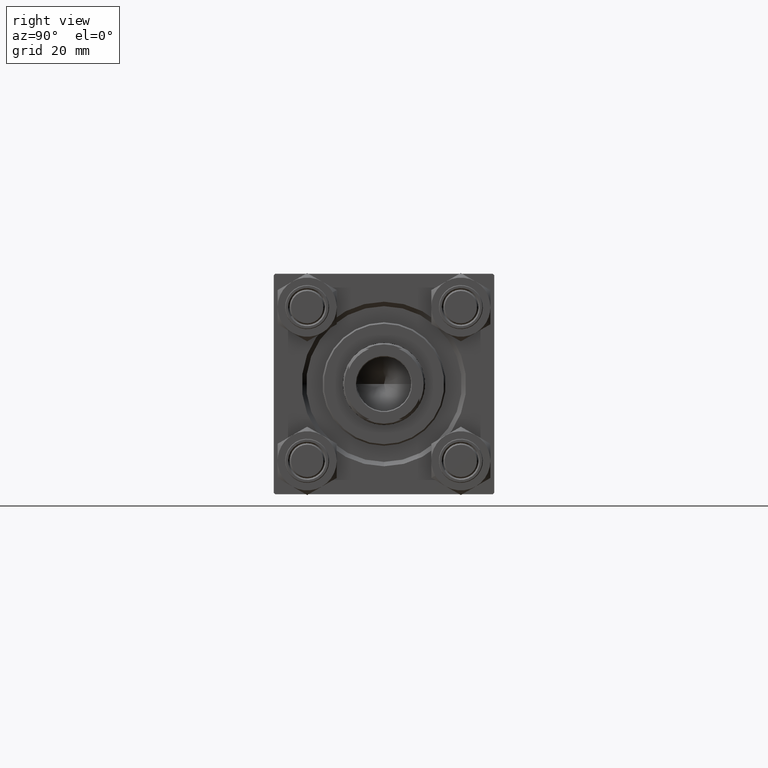
[diagram: clean part render]
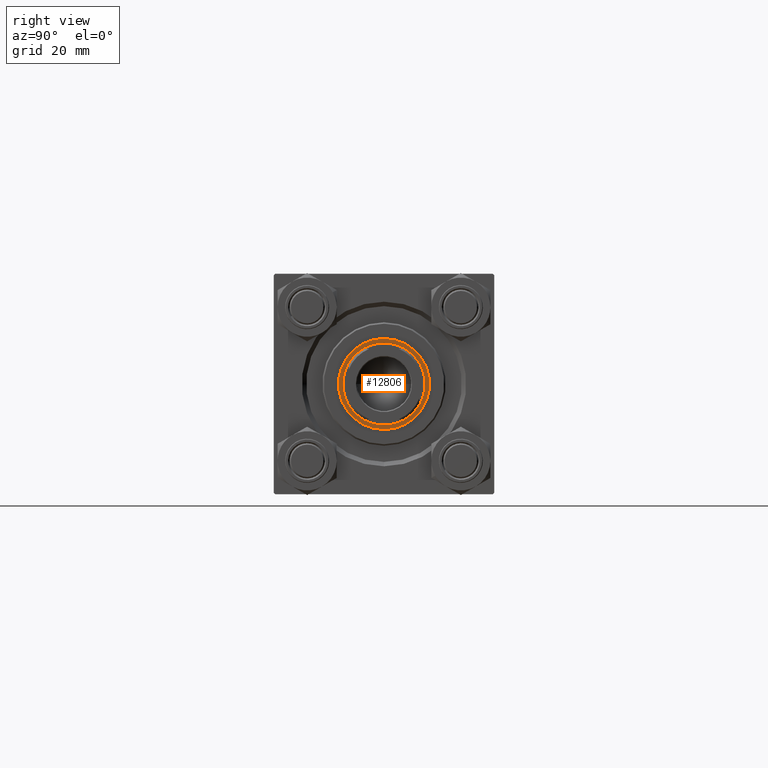
[diagram: same view with one face highlighted and labeled with its STEP entity id]
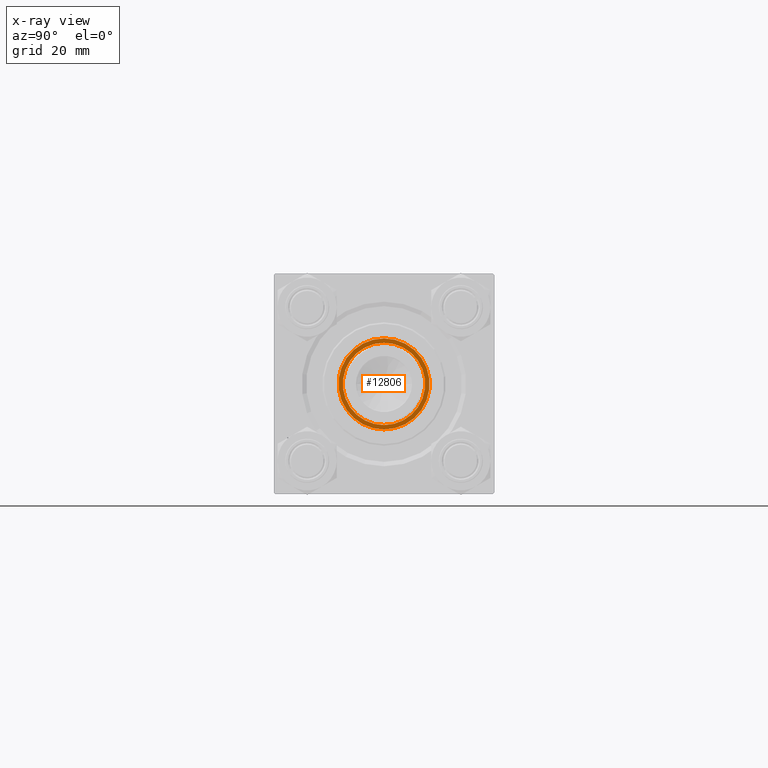
[diagram: x-ray of the same camera — body ghosted, the highlighted face saturated]
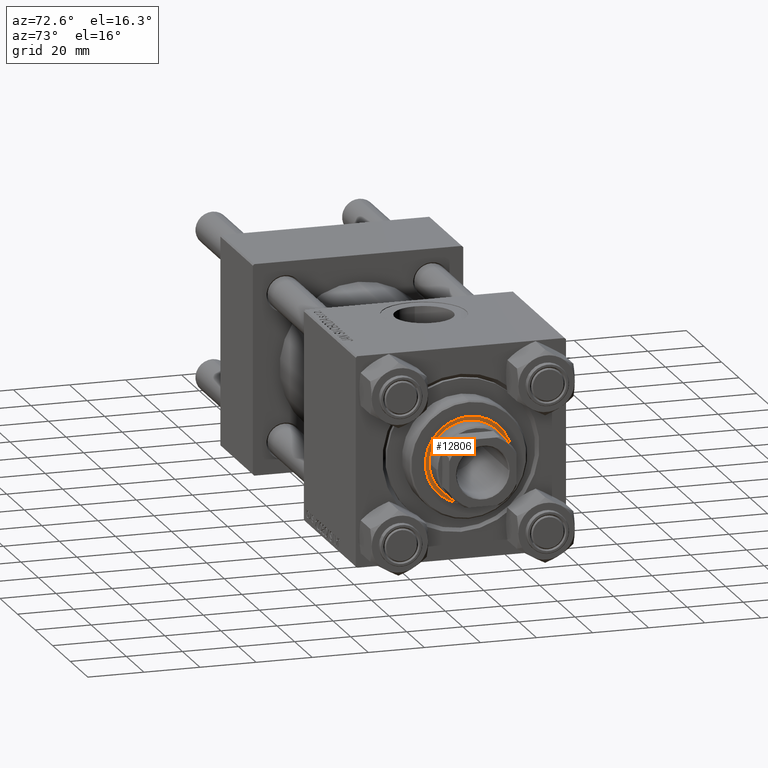
[diagram: same view with one face highlighted and labeled with its STEP entity id]
A machine part, right view. The second image highlights one B-rep face of the part: STEP entity #12806.
The next image is the same camera in x-ray: the body ghosted, the highlighted face saturated — about 0% of this face is hidden behind the body in this view.
A second angle (auxiliary view) of the same face is appended — the face is thin or edge-on in the first view.
In plain terms, the highlighted planar face has unit normal (1, 0, -0).
Its self-contained STEP definition (entity closure, byte-faithful):
#60 = DIRECTION ( 'NONE',  ( 1.000000000000000000, 0.000000000000000000, 0.000000000000000000 ) ) ;
#2221 = EDGE_LOOP ( 'NONE', ( #20067, #11394 ) ) ;
#3094 = CARTESIAN_POINT ( 'NONE',  ( 0.000000000000000000, 0.000000000000000000, 37.19999999999999574 ) ) ;
#4165 = EDGE_CURVE ( 'NONE', #33760, #31692, #21503, .T. ) ;
#6083 = ORIENTED_EDGE ( 'NONE', *, *, #29401, .T. ) ;
#8301 = CIRCLE ( 'NONE', #29206, 15.50000000000000000 ) ;
#8487 = CARTESIAN_POINT ( 'NONE',  ( -15.50000000000000000, 1.898202538678397557E-15, 37.19999999999999574 ) ) ;
#10490 = CARTESIAN_POINT ( 'NONE',  ( -14.00000000000000178, 1.714505518806294835E-15, 37.19999999999999574 ) ) ;
#11394 = ORIENTED_EDGE ( 'NONE', *, *, #24919, .T. ) ;
#12252 = DIRECTION ( 'NONE',  ( 0.000000000000000000, 0.000000000000000000, 1.000000000000000000 ) ) ;
#12717 = VERTEX_POINT ( 'NONE', #32453 ) ;
#12806 = ADVANCED_FACE ( 'NONE', ( #22126, #18097 ), #49034, .T. ) ;
#13280 = CIRCLE ( 'NONE', #22123, 14.00000000000000178 ) ;
#13666 = AXIS2_PLACEMENT_3D ( 'NONE', #29925, #14326, #45265 ) ;
#14181 = CARTESIAN_POINT ( 'NONE',  ( 0.000000000000000000, 0.000000000000000000, 37.19999999999999574 ) ) ;
#14326 = DIRECTION ( 'NONE',  ( 0.000000000000000000, 0.000000000000000000, 1.000000000000000000 ) ) ;
#16160 = DIRECTION ( 'NONE',  ( -0.000000000000000000, -0.000000000000000000, -1.000000000000000000 ) ) ;
#16355 = CARTESIAN_POINT ( 'NONE',  ( 14.00000000000000178, 0.000000000000000000, 37.19999999999999574 ) ) ;
#18097 = FACE_BOUND ( 'NONE', #31561, .T. ) ;
#18438 = DIRECTION ( 'NONE',  ( -0.000000000000000000, -0.000000000000000000, -1.000000000000000000 ) ) ;
#20067 = ORIENTED_EDGE ( 'NONE', *, *, #47285, .T. ) ;
#20939 = DIRECTION ( 'NONE',  ( 0.000000000000000000, 0.000000000000000000, 1.000000000000000000 ) ) ;
#21503 = CIRCLE ( 'NONE', #32749, 14.00000000000000178 ) ;
#22123 = AXIS2_PLACEMENT_3D ( 'NONE', #14181, #16160, #60 ) ;
#22126 = FACE_OUTER_BOUND ( 'NONE', #2221, .T. ) ;
#24919 = EDGE_CURVE ( 'NONE', #28926, #12717, #46079, .T. ) ;
#28926 = VERTEX_POINT ( 'NONE', #8487 ) ;
#29206 = AXIS2_PLACEMENT_3D ( 'NONE', #36791, #20939, #40319 ) ;
#29401 = EDGE_CURVE ( 'NONE', #31692, #33760, #13280, .T. ) ;
#29925 = CARTESIAN_POINT ( 'NONE',  ( 0.000000000000000000, 0.000000000000000000, 37.19999999999999574 ) ) ;
#30625 = DIRECTION ( 'NONE',  ( 1.000000000000000000, 0.000000000000000000, 0.000000000000000000 ) ) ;
#31561 = EDGE_LOOP ( 'NONE', ( #46919, #6083 ) ) ;
#31692 = VERTEX_POINT ( 'NONE', #10490 ) ;
#32453 = CARTESIAN_POINT ( 'NONE',  ( 15.50000000000000000, 0.000000000000000000, 37.19999999999999574 ) ) ;
#32749 = AXIS2_PLACEMENT_3D ( 'NONE', #3094, #18438, #44850 ) ;
#33760 = VERTEX_POINT ( 'NONE', #16355 ) ;
#34897 = CARTESIAN_POINT ( 'NONE',  ( 0.000000000000000000, 0.000000000000000000, 37.19999999999999574 ) ) ;
#36791 = CARTESIAN_POINT ( 'NONE',  ( 0.000000000000000000, 0.000000000000000000, 37.19999999999999574 ) ) ;
#40319 = DIRECTION ( 'NONE',  ( 1.000000000000000000, 0.000000000000000000, 0.000000000000000000 ) ) ;
#42065 = AXIS2_PLACEMENT_3D ( 'NONE', #34897, #12252, #30625 ) ;
#44850 = DIRECTION ( 'NONE',  ( 1.000000000000000000, 0.000000000000000000, 0.000000000000000000 ) ) ;
#45265 = DIRECTION ( 'NONE',  ( 1.000000000000000000, 0.000000000000000000, -0.000000000000000000 ) ) ;
#46079 = CIRCLE ( 'NONE', #42065, 15.50000000000000000 ) ;
#46919 = ORIENTED_EDGE ( 'NONE', *, *, #4165, .T. ) ;
#47285 = EDGE_CURVE ( 'NONE', #12717, #28926, #8301, .T. ) ;
#49034 = PLANE ( 'NONE',  #13666 ) ;